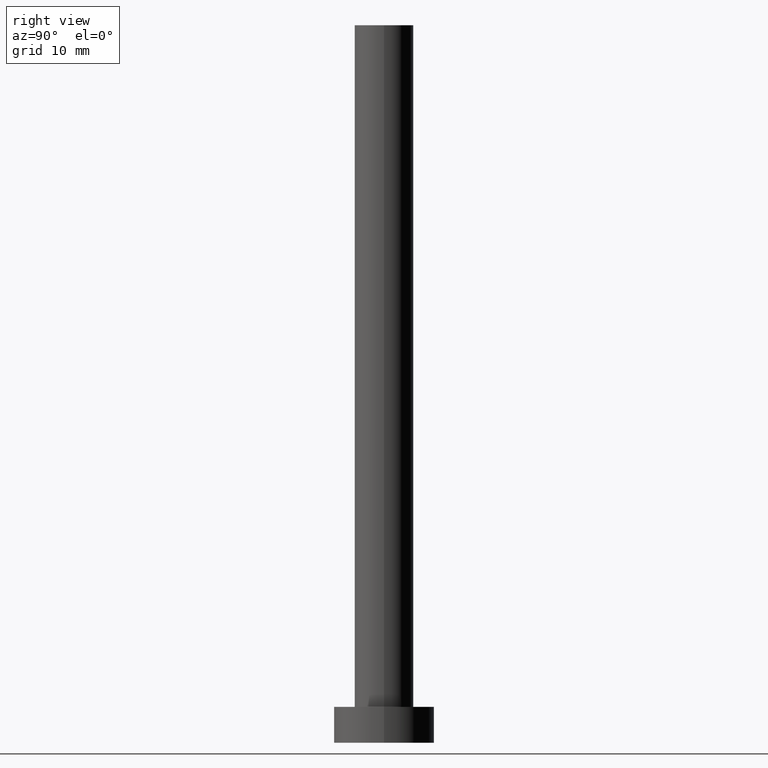
[diagram: clean part render]
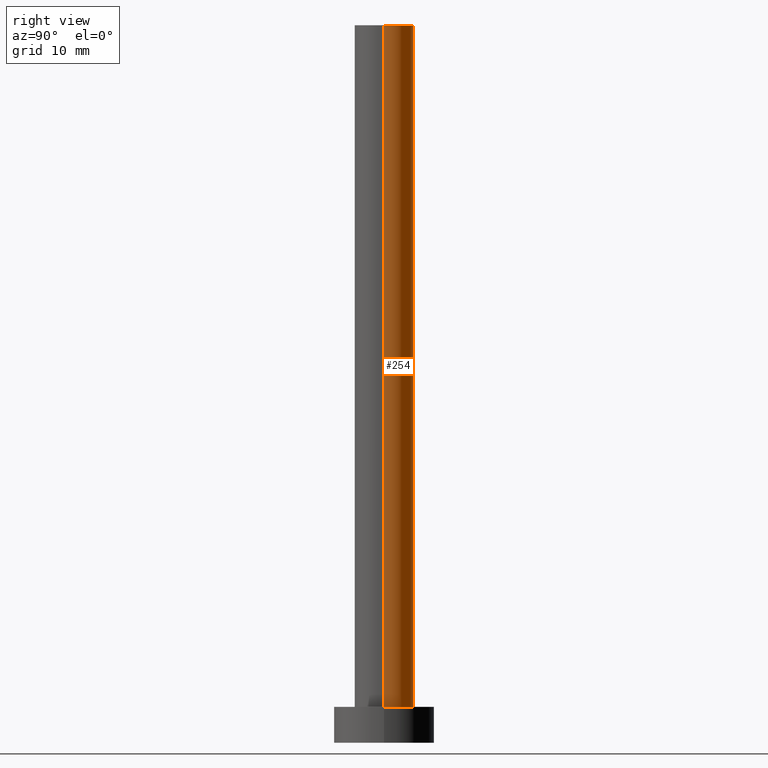
[diagram: same view with one face highlighted and labeled with its STEP entity id]
A machine part, right view. The second image highlights one B-rep face of the part: STEP entity #254.
In plain terms, the highlighted cylindrical surface (edge-blend (fillet) strip) has radius 4.1 mm, axis along (-0, -0, -1).
Its self-contained STEP definition (entity closure, byte-faithful):
#13 = VERTEX_POINT ( 'NONE', #27 ) ;
#16 = DIRECTION ( 'NONE',  ( -1.000000000000000000, 0.000000000000000000, 0.000000000000000000 ) ) ;
#22 = CIRCLE ( 'NONE', #125, 4.099999999999999645 ) ;
#23 = DIRECTION ( 'NONE',  ( 0.000000000000000000, 0.000000000000000000, 1.000000000000000000 ) ) ;
#27 = CARTESIAN_POINT ( 'NONE',  ( 4.099999999999999645, 5.021051876504147385E-16, 5.000000000000000000 ) ) ;
#28 = AXIS2_PLACEMENT_3D ( 'NONE', #182, #166, #167 ) ;
#40 = CARTESIAN_POINT ( 'NONE',  ( 0.000000000000000000, 0.000000000000000000, 5.000000000000000000 ) ) ;
#54 = EDGE_CURVE ( 'NONE', #122, #89, #244, .T. ) ;
#63 = DIRECTION ( 'NONE',  ( -0.000000000000000000, -0.000000000000000000, -1.000000000000000000 ) ) ;
#70 = EDGE_CURVE ( 'NONE', #89, #253, #243, .T. ) ;
#73 = FACE_OUTER_BOUND ( 'NONE', #155, .T. ) ;
#85 = CARTESIAN_POINT ( 'NONE',  ( -4.099999999999999645, 0.000000000000000000, 5.000000000000000000 ) ) ;
#89 = VERTEX_POINT ( 'NONE', #234 ) ;
#95 = ORIENTED_EDGE ( 'NONE', *, *, #70, .F. ) ;
#98 = VECTOR ( 'NONE', #145, 1000.000000000000000 ) ;
#110 = DIRECTION ( 'NONE',  ( -0.000000000000000000, -0.000000000000000000, -1.000000000000000000 ) ) ;
#111 = VECTOR ( 'NONE', #63, 1000.000000000000000 ) ;
#117 = ORIENTED_EDGE ( 'NONE', *, *, #192, .T. ) ;
#122 = VERTEX_POINT ( 'NONE', #140 ) ;
#125 = AXIS2_PLACEMENT_3D ( 'NONE', #40, #23, #126 ) ;
#126 = DIRECTION ( 'NONE',  ( 1.000000000000000000, 0.000000000000000000, 0.000000000000000000 ) ) ;
#130 = CARTESIAN_POINT ( 'NONE',  ( 0.000000000000000000, 0.000000000000000000, 100.0000000000000000 ) ) ;
#133 = AXIS2_PLACEMENT_3D ( 'NONE', #130, #110, #16 ) ;
#140 = CARTESIAN_POINT ( 'NONE',  ( 4.099999999999999645, 5.021051876504147385E-16, 100.0000000000000000 ) ) ;
#145 = DIRECTION ( 'NONE',  ( -0.000000000000000000, -0.000000000000000000, -1.000000000000000000 ) ) ;
#154 = LINE ( 'NONE', #174, #111 ) ;
#155 = EDGE_LOOP ( 'NONE', ( #156, #117, #171, #95 ) ) ;
#156 = ORIENTED_EDGE ( 'NONE', *, *, #54, .F. ) ;
#166 = DIRECTION ( 'NONE',  ( 0.000000000000000000, 0.000000000000000000, 1.000000000000000000 ) ) ;
#167 = DIRECTION ( 'NONE',  ( 1.000000000000000000, 0.000000000000000000, 0.000000000000000000 ) ) ;
#171 = ORIENTED_EDGE ( 'NONE', *, *, #247, .T. ) ;
#174 = CARTESIAN_POINT ( 'NONE',  ( 4.099999999999999645, 5.021051876504147385E-16, 100.0000000000000000 ) ) ;
#182 = CARTESIAN_POINT ( 'NONE',  ( 0.000000000000000000, 0.000000000000000000, 100.0000000000000000 ) ) ;
#192 = EDGE_CURVE ( 'NONE', #122, #13, #154, .T. ) ;
#226 = CARTESIAN_POINT ( 'NONE',  ( -4.099999999999999645, 0.000000000000000000, 100.0000000000000000 ) ) ;
#234 = CARTESIAN_POINT ( 'NONE',  ( -4.099999999999999645, 0.000000000000000000, 100.0000000000000000 ) ) ;
#243 = LINE ( 'NONE', #226, #98 ) ;
#244 = CIRCLE ( 'NONE', #28, 4.099999999999999645 ) ;
#247 = EDGE_CURVE ( 'NONE', #13, #253, #22, .T. ) ;
#249 = CYLINDRICAL_SURFACE ( 'NONE', #133, 4.099999999999999645 ) ;
#253 = VERTEX_POINT ( 'NONE', #85 ) ;
#254 = ADVANCED_FACE ( 'NONE', ( #73 ), #249, .T. ) ;